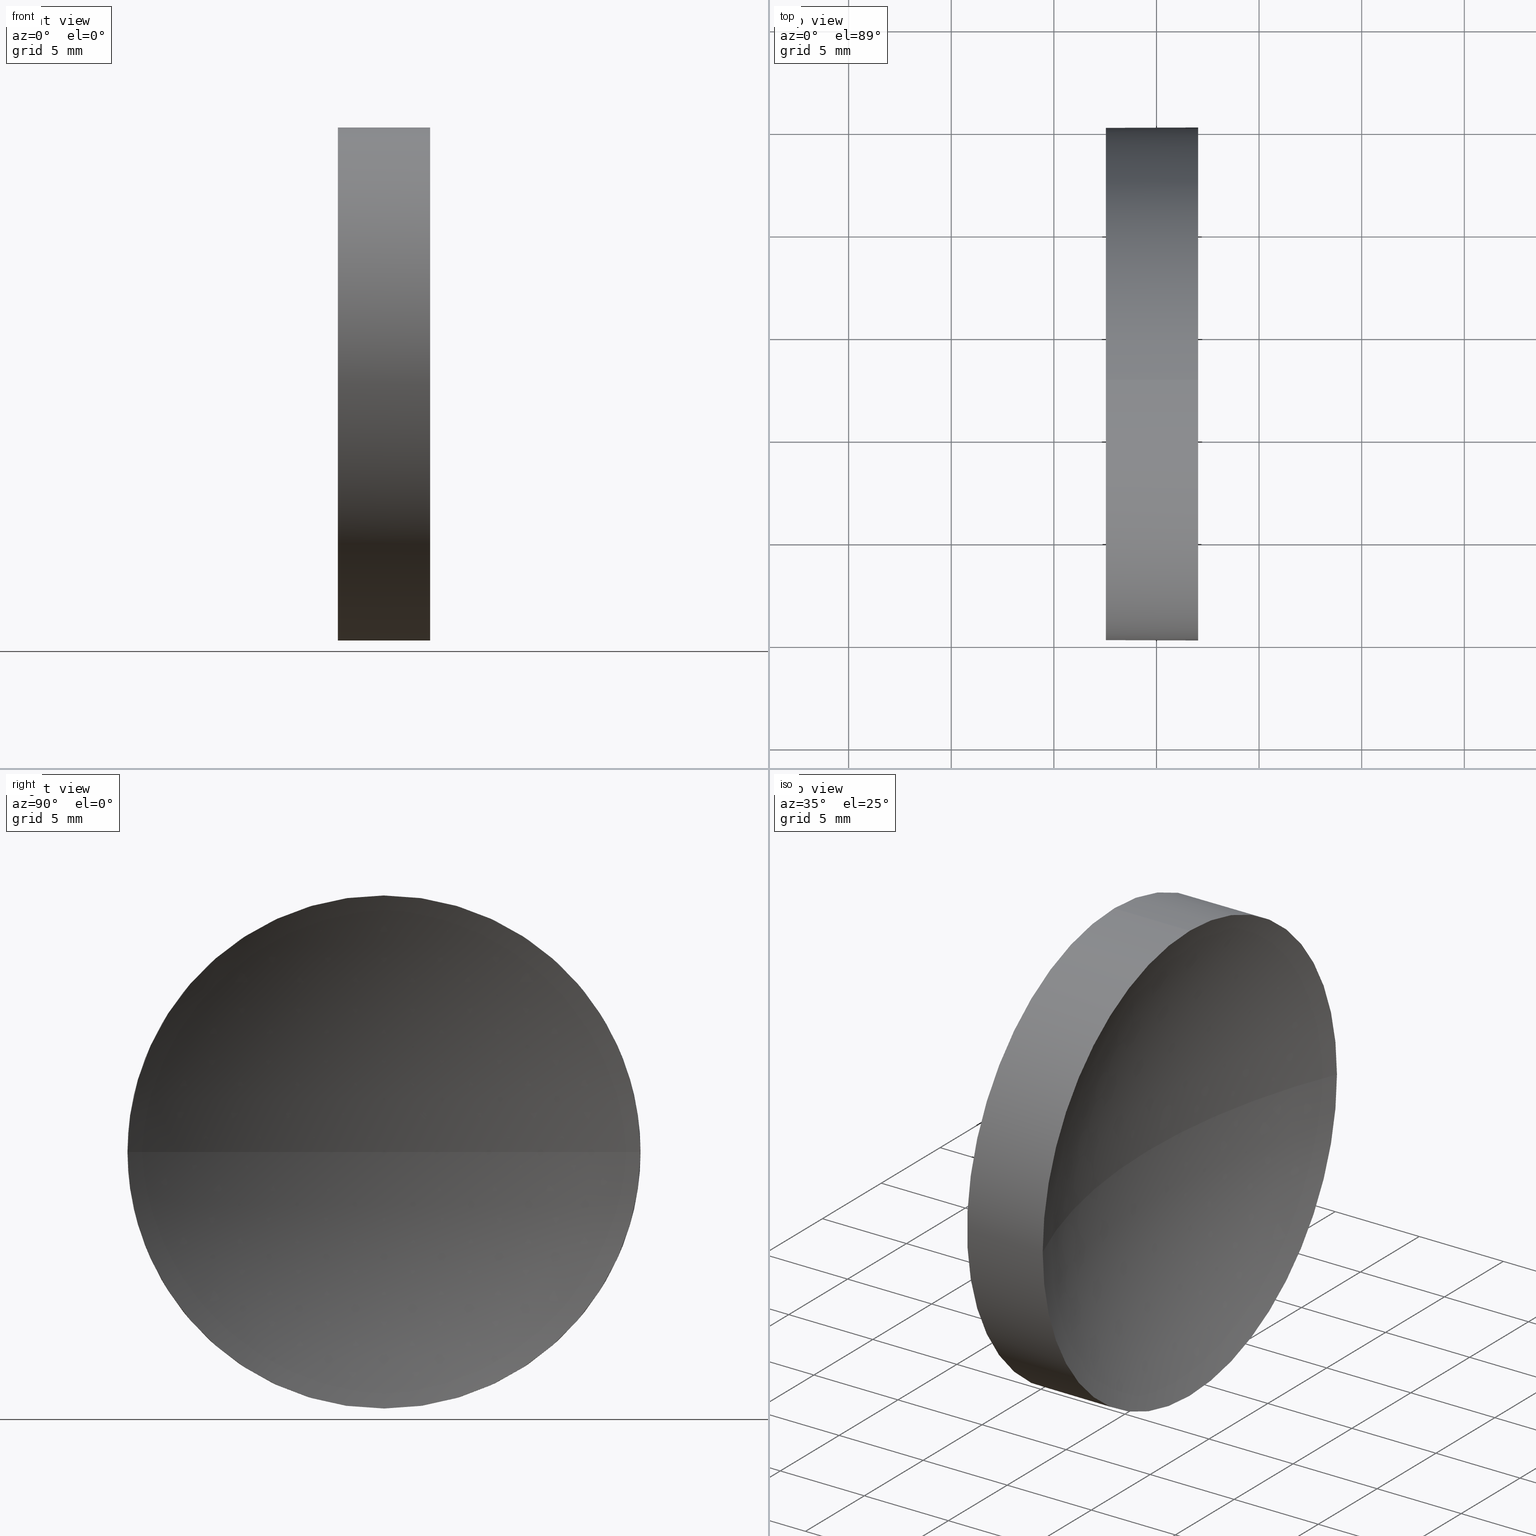
[diagram: canonical four-view strip — front | top / right | iso, engineering-drawing reading convention]
A machine part, canonical four-view strip (front | top / right | iso — engineering-drawing reading convention). The complete STEP part file that produces these views, byte-faithful:
ISO-10303-21;
HEADER;
FILE_DESCRIPTION (( 'STEP AP214' ),
    '1' );
FILE_NAME ('120033.STEP',
    '2019-06-17T03:10:47',
    ( '' ),
    ( '' ),
    'SwSTEP 2.0',
    'SolidWorks 2016',
    '' );
FILE_SCHEMA (( 'AUTOMOTIVE_DESIGN' ));
ENDSEC;

DATA;
#1 = AXIS2_PLACEMENT_3D ( 'NONE', #136, #167, #178 ) ;
#2 = FACE_OUTER_BOUND ( 'NONE', #51, .T. ) ;
#3 = SHAPE_DEFINITION_REPRESENTATION ( #20, #157 ) ;
#4 = DIRECTION ( 'NONE',  ( 0.0000000000000000000, 0.0000000000000000000, 1.000000000000000000 ) ) ;
#5 = VERTEX_POINT ( 'NONE', #19 ) ;
#6 = CARTESIAN_POINT ( 'NONE',  ( 62.03233705252611700, 32.61076812922678400, 0.0000000000000000000 ) ) ;
#7 = EDGE_CURVE ( 'NONE', #148, #23, #109, .T. ) ;
#8 = PRODUCT_DEFINITION_CONTEXT ( 'detailed design', #59, 'design' ) ;
#9 = EDGE_LOOP ( 'NONE', ( #117, #64, #81, #30, #175 ) ) ;
#10 = CARTESIAN_POINT ( 'NONE',  ( 56.10091507999716500, 32.61076812922678400, 0.0000000000000000000 ) ) ;
#11 = EDGE_CURVE ( 'NONE', #23, #164, #46, .T. ) ;
#12 = CARTESIAN_POINT ( 'NONE',  ( 57.53233705252611700, 32.61076812922678400, 0.0000000000000000000 ) ) ;
#13 = CARTESIAN_POINT ( 'NONE',  ( 57.53233705252611700, 32.61076812922678400, 0.0000000000000000000 ) ) ;
#14 = DIRECTION ( 'NONE',  ( -1.000000000000000000, -0.0000000000000000000, -0.0000000000000000000 ) ) ;
#15 =( LENGTH_UNIT ( ) NAMED_UNIT ( * ) SI_UNIT ( .MILLI., .METRE. ) );
#16 = CIRCLE ( 'NONE', #184, 32.50000000000000000 ) ;
#17 = PRESENTATION_LAYER_ASSIGNMENT (  '', '', ( #116 ) ) ;
#18 = VERTEX_POINT ( 'NONE', #134 ) ;
#19 = CARTESIAN_POINT ( 'NONE',  ( 57.53233705252611700, 32.61076812922678400, 12.49999999999999600 ) ) ;
#20 = PRODUCT_DEFINITION_SHAPE ( 'NONE', 'NONE',  #73 ) ;
#21 =( LENGTH_UNIT ( ) NAMED_UNIT ( * ) SI_UNIT ( .MILLI., .METRE. ) );
#22 = FILL_AREA_STYLE ('',( #171 ) ) ;
#23 = VERTEX_POINT ( 'NONE', #165 ) ;
#24 = DIRECTION ( 'NONE',  ( -1.000000000000000000, 0.0000000000000000000, 0.0000000000000000000 ) ) ;
#25 = DIRECTION ( 'NONE',  ( 0.0000000000000000000, 0.0000000000000000000, 1.000000000000000000 ) ) ;
#26 =( GEOMETRIC_REPRESENTATION_CONTEXT ( 3 ) GLOBAL_UNCERTAINTY_ASSIGNED_CONTEXT ( ( #94 ) ) GLOBAL_UNIT_ASSIGNED_CONTEXT ( ( #37, #54, #153 ) ) REPRESENTATION_CONTEXT ( 'NONE', 'WORKASPACE' ) );
#27 =( NAMED_UNIT ( * ) PLANE_ANGLE_UNIT ( ) SI_UNIT ( $, .RADIAN. ) );
#28 = EDGE_CURVE ( 'NONE', #164, #40, #16, .T. ) ;
#29 = VECTOR ( 'NONE', #108, 1000.000000000000000 ) ;
#30 = ORIENTED_EDGE ( 'NONE', *, *, #93, .T. ) ;
#31 = DIRECTION ( 'NONE',  ( -1.000000000000000000, -0.0000000000000000000, -0.0000000000000000000 ) ) ;
#32 = ADVANCED_FACE ( 'NONE', ( #2 ), #185, .T. ) ;
#33 = AXIS2_PLACEMENT_3D ( 'NONE', #83, #98, #154 ) ;
#34 = DIRECTION ( 'NONE',  ( -1.000000000000000000, -0.0000000000000000000, -0.0000000000000000000 ) ) ;
#35 = SURFACE_STYLE_FILL_AREA ( #22 ) ;
#36 = LINE ( 'NONE', #118, #145 ) ;
#37 =( LENGTH_UNIT ( ) NAMED_UNIT ( * ) SI_UNIT ( .MILLI., .METRE. ) );
#38 = CARTESIAN_POINT ( 'NONE',  ( 62.03233705252611700, 20.11076812922678800, 0.0000000000000000000 ) ) ;
#39 = AXIS2_PLACEMENT_3D ( 'NONE', #13, #14, #180 ) ;
#40 = VERTEX_POINT ( 'NONE', #170 ) ;
#41 = CARTESIAN_POINT ( 'NONE',  ( 92.03233705252611700, 32.61076812922678400, 0.0000000000000000000 ) ) ;
#42 =( NAMED_UNIT ( * ) SI_UNIT ( $, .STERADIAN. ) SOLID_ANGLE_UNIT ( ) );
#43 = PRODUCT_CONTEXT ( 'NONE', #141, 'mechanical' ) ;
#44 = EDGE_CURVE ( 'NONE', #23, #88, #36, .T. ) ;
#45 = CYLINDRICAL_SURFACE ( 'NONE', #60, 12.49999999999999600 ) ;
#46 = CIRCLE ( 'NONE', #87, 12.49999999999999600 ) ;
#47 = CARTESIAN_POINT ( 'NONE',  ( 0.0000000000000000000, 0.0000000000000000000, 0.0000000000000000000 ) ) ;
#48 = ORIENTED_EDGE ( 'NONE', *, *, #93, .F. ) ;
#49 = CIRCLE ( 'NONE', #131, 12.49999999999999600 ) ;
#50 = ORIENTED_EDGE ( 'NONE', *, *, #120, .T. ) ;
#51 = EDGE_LOOP ( 'NONE', ( #130, #115, #76, #48, #92 ) ) ;
#52 = STYLED_ITEM ( 'NONE', ( #161 ), #157 ) ;
#53 = DIRECTION ( 'NONE',  ( 0.0000000000000000000, 0.0000000000000000000, 1.000000000000000000 ) ) ;
#54 =( NAMED_UNIT ( * ) PLANE_ANGLE_UNIT ( ) SI_UNIT ( $, .RADIAN. ) );
#55 = EDGE_LOOP ( 'NONE', ( #186, #50 ) ) ;
#56 = CARTESIAN_POINT ( 'NONE',  ( 57.53233705252611700, 32.61076812922678400, 0.0000000000000000000 ) ) ;
#57 = DIRECTION ( 'NONE',  ( 1.000000000000000000, 0.0000000000000000000, 0.0000000000000000000 ) ) ;
#58 = AXIS2_PLACEMENT_3D ( 'NONE', #47, #158, #72 ) ;
#59 = APPLICATION_CONTEXT ( 'automotive_design' ) ;
#60 = AXIS2_PLACEMENT_3D ( 'NONE', #10, #110, #66 ) ;
#61 = ORIENTED_EDGE ( 'NONE', *, *, #28, .F. ) ;
#62 = SPHERICAL_SURFACE ( 'NONE', #107, 32.50000000000000000 ) ;
#63 = AXIS2_PLACEMENT_3D ( 'NONE', #78, #31, #53 ) ;
#64 = ORIENTED_EDGE ( 'NONE', *, *, #11, .T. ) ;
#65 = PRESENTATION_STYLE_ASSIGNMENT (( #122 ) ) ;
#66 = DIRECTION ( 'NONE',  ( 0.0000000000000000000, 0.0000000000000000000, 1.000000000000000000 ) ) ;
#67 = CARTESIAN_POINT ( 'NONE',  ( 92.03233705252611700, 32.61076812922678400, 0.0000000000000000000 ) ) ;
#68 =( GEOMETRIC_REPRESENTATION_CONTEXT ( 3 ) GLOBAL_UNCERTAINTY_ASSIGNED_CONTEXT ( ( #128 ) ) GLOBAL_UNIT_ASSIGNED_CONTEXT ( ( #21, #27, #101 ) ) REPRESENTATION_CONTEXT ( 'NONE', 'WORKASPACE' ) );
#69 = DIRECTION ( 'NONE',  ( -1.000000000000000000, -0.0000000000000000000, -0.0000000000000000000 ) ) ;
#70 = ORIENTED_EDGE ( 'NONE', *, *, #74, .F. ) ;
#71 = AXIS2_PLACEMENT_3D ( 'NONE', #56, #57, #123 ) ;
#72 = DIRECTION ( 'NONE',  ( 1.000000000000000000, 0.0000000000000000000, 0.0000000000000000000 ) ) ;
#73 = PRODUCT_DEFINITION ( 'δ֪', '', #169, #8 ) ;
#74 = EDGE_CURVE ( 'NONE', #164, #18, #105, .T. ) ;
#75 = CIRCLE ( 'NONE', #80, 32.50000000000000000 ) ;
#76 = ORIENTED_EDGE ( 'NONE', *, *, #127, .F. ) ;
#77 = CARTESIAN_POINT ( 'NONE',  ( 62.03233705252611700, 32.61076812922678400, 0.0000000000000000000 ) ) ;
#78 = CARTESIAN_POINT ( 'NONE',  ( 56.10091507999716500, 32.61076812922678400, 0.0000000000000000000 ) ) ;
#79 = FACE_OUTER_BOUND ( 'NONE', #55, .T. ) ;
#80 = AXIS2_PLACEMENT_3D ( 'NONE', #67, #82, #139 ) ;
#81 = ORIENTED_EDGE ( 'NONE', *, *, #74, .T. ) ;
#82 = DIRECTION ( 'NONE',  ( 0.0000000000000000000, -1.224646799147353200E-016, 1.000000000000000000 ) ) ;
#83 = CARTESIAN_POINT ( 'NONE',  ( 62.03233705252611700, 32.61076812922678400, 0.0000000000000000000 ) ) ;
#84 = EDGE_LOOP ( 'NONE', ( #163, #121, #61, #144 ) ) ;
#85 = CARTESIAN_POINT ( 'NONE',  ( 57.53233705252611700, 32.61076812922678400, -12.49999999999999600 ) ) ;
#86 = PRODUCT ( '120033', '120033', '', ( #43 ) ) ;
#87 = AXIS2_PLACEMENT_3D ( 'NONE', #77, #34, #4 ) ;
#88 = VERTEX_POINT ( 'NONE', #85 ) ;
#89 = SURFACE_SIDE_STYLE ('',( #111 ) ) ;
#90 = SURFACE_STYLE_USAGE ( .BOTH. , #89 ) ;
#91 = LINE ( 'NONE', #138, #29 ) ;
#92 = ORIENTED_EDGE ( 'NONE', *, *, #102, .T. ) ;
#93 = EDGE_CURVE ( 'NONE', #18, #5, #91, .T. ) ;
#94 = UNCERTAINTY_MEASURE_WITH_UNIT (LENGTH_MEASURE( 1.000000000000000100E-005 ), #37, 'distance_accuracy_value', 'NONE');
#95 = ORIENTED_EDGE ( 'NONE', *, *, #28, .T. ) ;
#96 = AXIS2_PLACEMENT_3D ( 'NONE', #125, #99, #25 ) ;
#97 = DIRECTION ( 'NONE',  ( 0.0000000000000000000, 0.0000000000000000000, 1.000000000000000000 ) ) ;
#98 = DIRECTION ( 'NONE',  ( -1.000000000000000000, -0.0000000000000000000, -0.0000000000000000000 ) ) ;
#99 = DIRECTION ( 'NONE',  ( -1.000000000000000000, -0.0000000000000000000, -0.0000000000000000000 ) ) ;
#100 = PRESENTATION_LAYER_ASSIGNMENT (  '', '', ( #52 ) ) ;
#101 =( NAMED_UNIT ( * ) SI_UNIT ( $, .STERADIAN. ) SOLID_ANGLE_UNIT ( ) );
#102 = EDGE_CURVE ( 'NONE', #18, #148, #140, .T. ) ;
#103 = FILL_AREA_STYLE ('',( #172 ) ) ;
#104 = COLOUR_RGB ( '',1.000000000000000000, 1.000000000000000000, 1.000000000000000000 ) ;
#105 = CIRCLE ( 'NONE', #96, 12.49999999999999600 ) ;
#106 = MECHANICAL_DESIGN_GEOMETRIC_PRESENTATION_REPRESENTATION (  '', ( #52 ), #113 ) ;
#107 = AXIS2_PLACEMENT_3D ( 'NONE', #41, #97, #183 ) ;
#108 = DIRECTION ( 'NONE',  ( -1.000000000000000000, -0.0000000000000000000, -0.0000000000000000000 ) ) ;
#109 = CIRCLE ( 'NONE', #176, 12.49999999999999600 ) ;
#110 = DIRECTION ( 'NONE',  ( -1.000000000000000000, -0.0000000000000000000, -0.0000000000000000000 ) ) ;
#111 = SURFACE_STYLE_FILL_AREA ( #103 ) ;
#112 = CLOSED_SHELL ( 'NONE', ( #32, #166, #132, #119, #150 ) ) ;
#113 =( GEOMETRIC_REPRESENTATION_CONTEXT ( 3 ) GLOBAL_UNCERTAINTY_ASSIGNED_CONTEXT ( ( #146 ) ) GLOBAL_UNIT_ASSIGNED_CONTEXT ( ( #15, #142, #42 ) ) REPRESENTATION_CONTEXT ( 'NONE', 'WORKASPACE' ) );
#114 = CIRCLE ( 'NONE', #39, 12.49999999999999600 ) ;
#115 = ORIENTED_EDGE ( 'NONE', *, *, #44, .T. ) ;
#116 = STYLED_ITEM ( 'NONE', ( #65 ), #182 ) ;
#117 = ORIENTED_EDGE ( 'NONE', *, *, #44, .F. ) ;
#118 = CARTESIAN_POINT ( 'NONE',  ( 56.10091507999716500, 32.61076812922678400, -12.49999999999999600 ) ) ;
#119 = ADVANCED_FACE ( 'NONE', ( #159 ), #45, .T. ) ;
#120 = EDGE_CURVE ( 'NONE', #88, #5, #114, .T. ) ;
#121 = ORIENTED_EDGE ( 'NONE', *, *, #174, .T. ) ;
#122 = SURFACE_STYLE_USAGE ( .BOTH. , #137 ) ;
#123 = DIRECTION ( 'NONE',  ( 0.0000000000000000000, 0.0000000000000000000, -1.000000000000000000 ) ) ;
#124 = ORIENTED_EDGE ( 'NONE', *, *, #102, .F. ) ;
#125 = CARTESIAN_POINT ( 'NONE',  ( 62.03233705252611700, 32.61076812922678400, 0.0000000000000000000 ) ) ;
#126 = DIRECTION ( 'NONE',  ( -1.000000000000000000, -0.0000000000000000000, -0.0000000000000000000 ) ) ;
#127 = EDGE_CURVE ( 'NONE', #5, #88, #49, .T. ) ;
#128 = UNCERTAINTY_MEASURE_WITH_UNIT (LENGTH_MEASURE( 1.000000000000000100E-005 ), #21, 'distance_accuracy_value', 'NONE');
#129 = APPLICATION_PROTOCOL_DEFINITION ( 'draft international standard', 'automotive_design', 1998, #59 ) ;
#130 = ORIENTED_EDGE ( 'NONE', *, *, #7, .T. ) ;
#131 = AXIS2_PLACEMENT_3D ( 'NONE', #12, #126, #151 ) ;
#132 = ADVANCED_FACE ( 'NONE', ( #162 ), #143, .F. ) ;
#133 = FACE_OUTER_BOUND ( 'NONE', #84, .T. ) ;
#134 = CARTESIAN_POINT ( 'NONE',  ( 62.03233705252611700, 32.61076812922678400, 12.49999999999999600 ) ) ;
#135 = MECHANICAL_DESIGN_GEOMETRIC_PRESENTATION_REPRESENTATION (  '', ( #116 ), #26 ) ;
#136 = CARTESIAN_POINT ( 'NONE',  ( 92.03233705252611700, 32.61076812922678400, 0.0000000000000000000 ) ) ;
#137 = SURFACE_SIDE_STYLE ('',( #35 ) ) ;
#138 = CARTESIAN_POINT ( 'NONE',  ( 56.10091507999716500, 32.61076812922678400, 12.49999999999999600 ) ) ;
#139 = DIRECTION ( 'NONE',  ( 0.0000000000000000000, -1.000000000000000000, -1.224646799147353500E-016 ) ) ;
#140 = CIRCLE ( 'NONE', #33, 12.49999999999999600 ) ;
#141 = APPLICATION_CONTEXT ( 'automotive_design' ) ;
#142 =( NAMED_UNIT ( * ) PLANE_ANGLE_UNIT ( ) SI_UNIT ( $, .RADIAN. ) );
#143 = SPHERICAL_SURFACE ( 'NONE', #1, 32.50000000000000000 ) ;
#144 = ORIENTED_EDGE ( 'NONE', *, *, #11, .F. ) ;
#145 = VECTOR ( 'NONE', #69, 1000.000000000000000 ) ;
#146 = UNCERTAINTY_MEASURE_WITH_UNIT (LENGTH_MEASURE( 1.000000000000000100E-005 ), #15, 'distance_accuracy_value', 'NONE');
#147 = CARTESIAN_POINT ( 'NONE',  ( 92.03233705252611700, 32.61076812922678400, 0.0000000000000000000 ) ) ;
#148 = VERTEX_POINT ( 'NONE', #181 ) ;
#149 = DIRECTION ( 'NONE',  ( 0.0000000000000000000, 0.0000000000000000000, 1.000000000000000000 ) ) ;
#150 = ADVANCED_FACE ( 'NONE', ( #79 ), #168, .F. ) ;
#151 = DIRECTION ( 'NONE',  ( 0.0000000000000000000, 0.0000000000000000000, 1.000000000000000000 ) ) ;
#152 = COLOUR_RGB ( '',1.000000000000000000, 1.000000000000000000, 1.000000000000000000 ) ;
#153 =( NAMED_UNIT ( * ) SI_UNIT ( $, .STERADIAN. ) SOLID_ANGLE_UNIT ( ) );
#154 = DIRECTION ( 'NONE',  ( 0.0000000000000000000, 0.0000000000000000000, 1.000000000000000000 ) ) ;
#155 = PRODUCT_RELATED_PRODUCT_CATEGORY ( 'part', '', ( #86 ) ) ;
#156 = DIRECTION ( 'NONE',  ( 0.0000000000000000000, 0.0000000000000000000, -1.000000000000000000 ) ) ;
#157 = ADVANCED_BREP_SHAPE_REPRESENTATION ( '120033', ( #182, #58 ), #68 ) ;
#158 = DIRECTION ( 'NONE',  ( 0.0000000000000000000, 0.0000000000000000000, 1.000000000000000000 ) ) ;
#159 = FACE_OUTER_BOUND ( 'NONE', #9, .T. ) ;
#160 = ORIENTED_EDGE ( 'NONE', *, *, #174, .F. ) ;
#161 = PRESENTATION_STYLE_ASSIGNMENT (( #90 ) ) ;
#162 = FACE_OUTER_BOUND ( 'NONE', #179, .T. ) ;
#163 = ORIENTED_EDGE ( 'NONE', *, *, #7, .F. ) ;
#164 = VERTEX_POINT ( 'NONE', #38 ) ;
#165 = CARTESIAN_POINT ( 'NONE',  ( 62.03233705252611700, 32.61076812922678400, -12.49999999999999600 ) ) ;
#166 = ADVANCED_FACE ( 'NONE', ( #133 ), #62, .F. ) ;
#167 = DIRECTION ( 'NONE',  ( 0.0000000000000000000, 0.0000000000000000000, 1.000000000000000000 ) ) ;
#168 = PLANE ( 'NONE',  #71 ) ;
#169 = PRODUCT_DEFINITION_FORMATION_WITH_SPECIFIED_SOURCE ( '�κ�', '', #86, .NOT_KNOWN. ) ;
#170 = CARTESIAN_POINT ( 'NONE',  ( 59.53233705252611000, 32.61076812922678400, 0.0000000000000000000 ) ) ;
#171 = FILL_AREA_STYLE_COLOUR ( '', #104 ) ;
#172 = FILL_AREA_STYLE_COLOUR ( '', #152 ) ;
#173 = APPLICATION_PROTOCOL_DEFINITION ( 'draft international standard', 'automotive_design', 1998, #141 ) ;
#174 = EDGE_CURVE ( 'NONE', #148, #40, #75, .T. ) ;
#175 = ORIENTED_EDGE ( 'NONE', *, *, #120, .F. ) ;
#176 = AXIS2_PLACEMENT_3D ( 'NONE', #6, #177, #149 ) ;
#177 = DIRECTION ( 'NONE',  ( -1.000000000000000000, -0.0000000000000000000, -0.0000000000000000000 ) ) ;
#178 = DIRECTION ( 'NONE',  ( 0.0000000000000000000, -1.000000000000000000, 0.0000000000000000000 ) ) ;
#179 = EDGE_LOOP ( 'NONE', ( #160, #124, #70, #95 ) ) ;
#180 = DIRECTION ( 'NONE',  ( 0.0000000000000000000, 0.0000000000000000000, 1.000000000000000000 ) ) ;
#181 = CARTESIAN_POINT ( 'NONE',  ( 62.03233705252611700, 45.11076812922679100, 1.530808498934191500E-015 ) ) ;
#182 = MANIFOLD_SOLID_BREP ( '��ת1', #112 ) ;
#183 = DIRECTION ( 'NONE',  ( 0.0000000000000000000, -1.000000000000000000, 0.0000000000000000000 ) ) ;
#184 = AXIS2_PLACEMENT_3D ( 'NONE', #147, #156, #24 ) ;
#185 = CYLINDRICAL_SURFACE ( 'NONE', #63, 12.49999999999999600 ) ;
#186 = ORIENTED_EDGE ( 'NONE', *, *, #127, .T. ) ;
ENDSEC;
END-ISO-10303-21;
